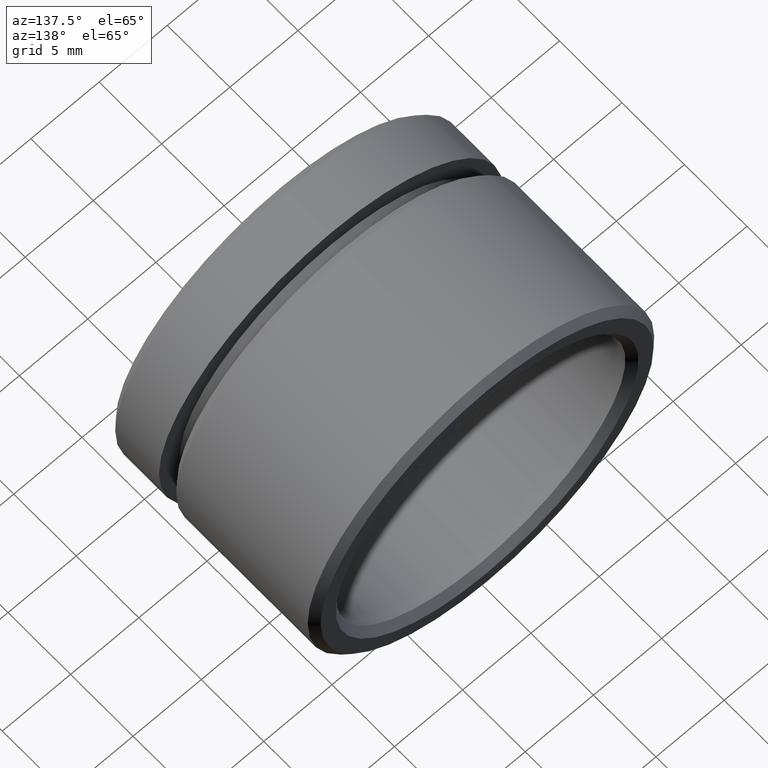
[diagram: clean part render]
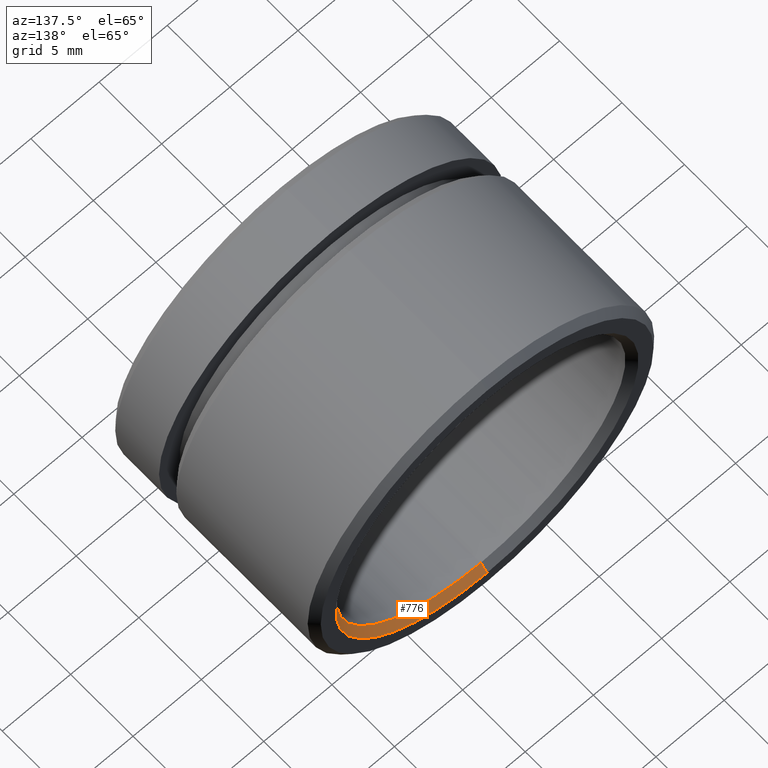
[diagram: same view with one face highlighted and labeled with its STEP entity id]
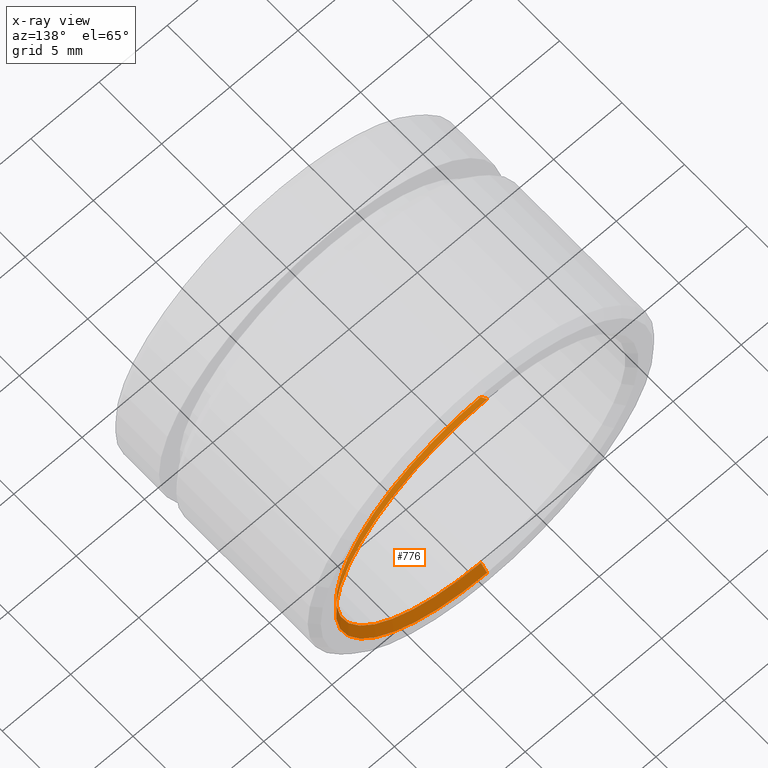
[diagram: x-ray of the same camera — body ghosted, the highlighted face saturated]
A machine part, auxiliary view. The second image highlights one B-rep face of the part: STEP entity #776.
The next image is the same camera in x-ray: the body ghosted, the highlighted face saturated — about 0% of this face is hidden behind the body in this view.
In plain terms, the highlighted conical surface has half-angle 45 deg.
Its self-contained STEP definition (entity closure, byte-faithful):
#18 = DIRECTION ( 'NONE',  ( -0.0000000000000000000, 1.000000000000000000, -0.0000000000000000000 ) ) ;
#33 = EDGE_CURVE ( 'NONE', #59, #398, #781, .T. ) ;
#59 = VERTEX_POINT ( 'NONE', #72 ) ;
#72 = CARTESIAN_POINT ( 'NONE',  ( 1.359357947053562000E-015, 16.50000000000000000, -11.09999999999999800 ) ) ;
#80 = AXIS2_PLACEMENT_3D ( 'NONE', #636, #116, #644 ) ;
#100 = EDGE_LOOP ( 'NONE', ( #862, #472, #391, #395 ) ) ;
#116 = DIRECTION ( 'NONE',  ( -0.0000000000000000000, -1.000000000000000000, -0.0000000000000000000 ) ) ;
#143 = CARTESIAN_POINT ( 'NONE',  ( 0.0000000000000000000, 16.50000000000000000, 11.09999999999999800 ) ) ;
#245 = AXIS2_PLACEMENT_3D ( 'NONE', #843, #18, #321 ) ;
#247 = CARTESIAN_POINT ( 'NONE',  ( 1.359357947053562000E-015, 16.50000000000000000, -11.09999999999999800 ) ) ;
#259 = DIRECTION ( 'NONE',  ( 0.0000000000000000000, 0.7071067811865451300, 0.7071067811865500200 ) ) ;
#280 = CARTESIAN_POINT ( 'NONE',  ( 0.0000000000000000000, 16.00000000000000700, -10.60000000000000100 ) ) ;
#291 = CARTESIAN_POINT ( 'NONE',  ( 1.298125607096194600E-015, 16.00000000000000700, 10.60000000000000100 ) ) ;
#300 = VERTEX_POINT ( 'NONE', #280 ) ;
#321 = DIRECTION ( 'NONE',  ( 0.0000000000000000000, 0.0000000000000000000, 1.000000000000000000 ) ) ;
#351 = VECTOR ( 'NONE', #259, 1000.000000000000100 ) ;
#372 = DIRECTION ( 'NONE',  ( 8.659560562354963700E-017, 0.7071067811865451300, -0.7071067811865500200 ) ) ;
#384 = EDGE_CURVE ( 'NONE', #300, #59, #554, .T. ) ;
#391 = ORIENTED_EDGE ( 'NONE', *, *, #402, .T. ) ;
#395 = ORIENTED_EDGE ( 'NONE', *, *, #33, .F. ) ;
#398 = VERTEX_POINT ( 'NONE', #143 ) ;
#402 = EDGE_CURVE ( 'NONE', #497, #398, #410, .T. ) ;
#410 = LINE ( 'NONE', #847, #351 ) ;
#425 = CONICAL_SURFACE ( 'NONE', #454, 11.09999999999999800, 0.7853981633974517200 ) ;
#454 = AXIS2_PLACEMENT_3D ( 'NONE', #467, #735, #835 ) ;
#467 = CARTESIAN_POINT ( 'NONE',  ( 0.0000000000000000000, 16.50000000000000000, 0.0000000000000000000 ) ) ;
#472 = ORIENTED_EDGE ( 'NONE', *, *, #620, .F. ) ;
#497 = VERTEX_POINT ( 'NONE', #291 ) ;
#554 = LINE ( 'NONE', #247, #587 ) ;
#587 = VECTOR ( 'NONE', #372, 1000.000000000000100 ) ;
#620 = EDGE_CURVE ( 'NONE', #497, #300, #715, .T. ) ;
#636 = CARTESIAN_POINT ( 'NONE',  ( 0.0000000000000000000, 16.50000000000000000, 0.0000000000000000000 ) ) ;
#644 = DIRECTION ( 'NONE',  ( 0.0000000000000000000, 0.0000000000000000000, 1.000000000000000000 ) ) ;
#670 = FACE_OUTER_BOUND ( 'NONE', #100, .T. ) ;
#715 = CIRCLE ( 'NONE', #245, 10.60000000000000100 ) ;
#735 = DIRECTION ( 'NONE',  ( -0.0000000000000000000, 1.000000000000000000, -0.0000000000000000000 ) ) ;
#776 = ADVANCED_FACE ( 'NONE', ( #670 ), #425, .F. ) ;
#781 = CIRCLE ( 'NONE', #80, 11.09999999999999800 ) ;
#835 = DIRECTION ( 'NONE',  ( 0.0000000000000000000, 0.0000000000000000000, 1.000000000000000000 ) ) ;
#843 = CARTESIAN_POINT ( 'NONE',  ( 0.0000000000000000000, 16.00000000000000700, 0.0000000000000000000 ) ) ;
#847 = CARTESIAN_POINT ( 'NONE',  ( 0.0000000000000000000, 16.50000000000000000, 11.09999999999999800 ) ) ;
#862 = ORIENTED_EDGE ( 'NONE', *, *, #384, .F. ) ;